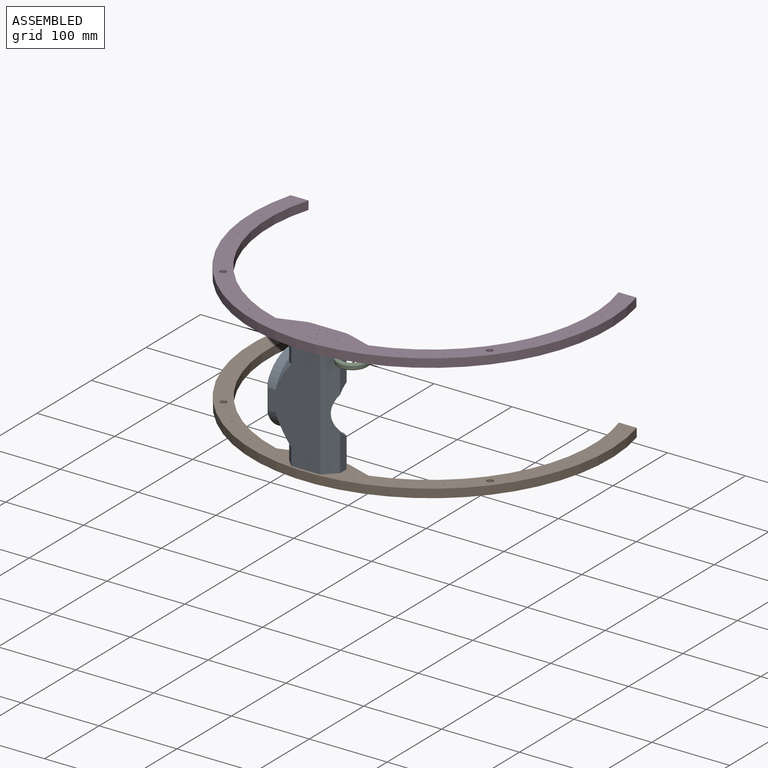
[diagram: assembled view]
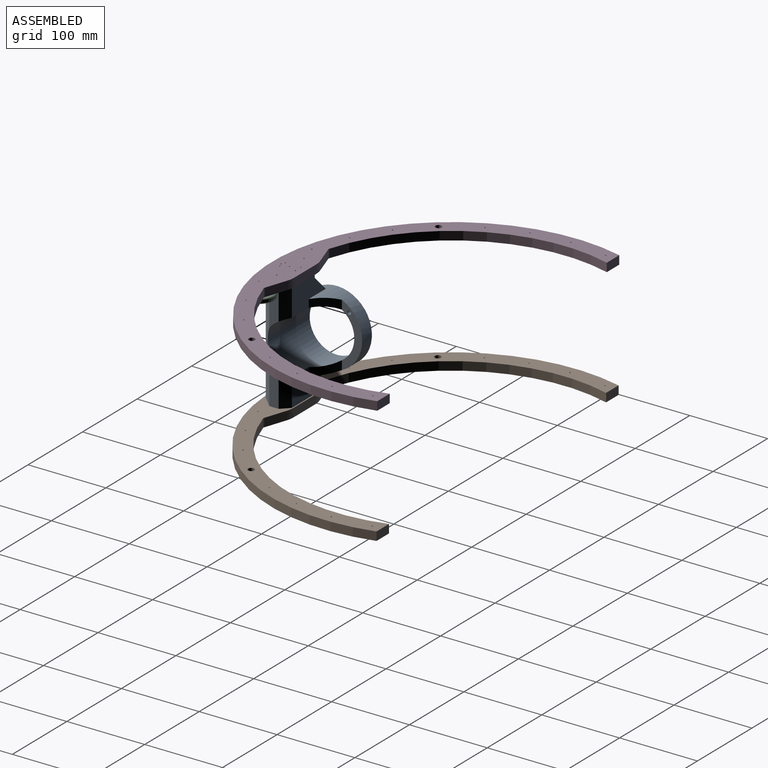
[diagram: assembled view, second angle]
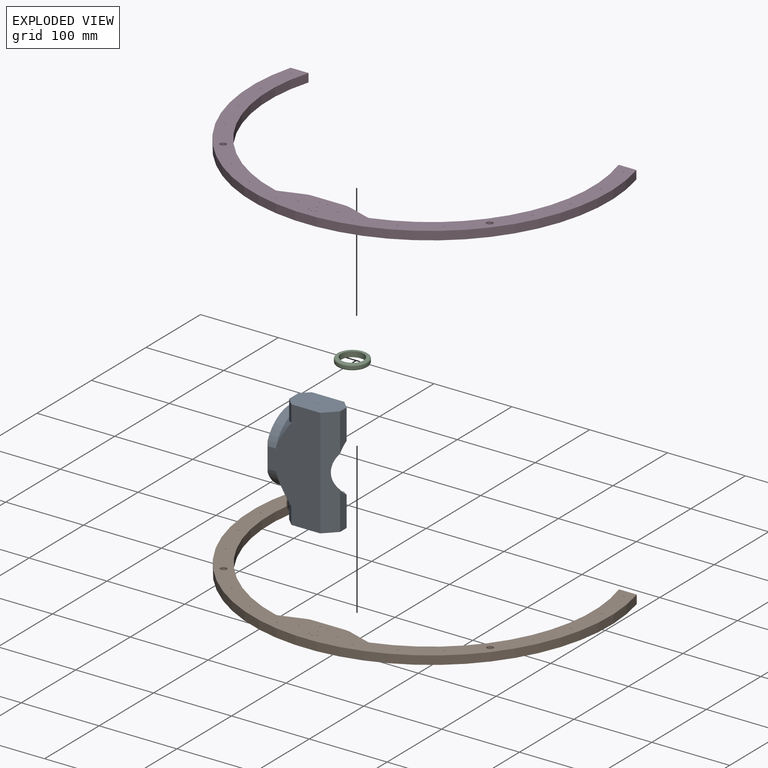
[diagram: exploded view]
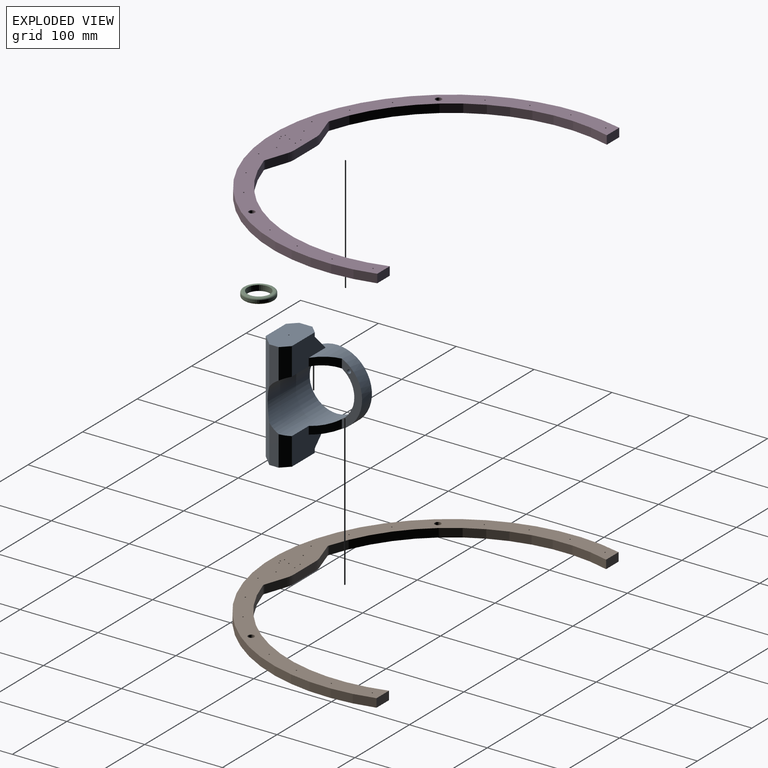
[diagram: exploded view, second angle]
ASSEMBLY  parts=4 mates=3
PART A: 32 faces, bbox 140x107.1x84 mm
  f0: cylinder r=45mm len=90mm, axis (0,0,-1), area 4609.8mm2, adj f1,f2,f4,f5,f6,f7,f8,f12
  f1: plane 140x67mm, normal (0,1,0), area 6779.9mm2, adj f0,f12,f13,f16,f21,f24,f25,f29
  f2: plane 90x86mm, normal (0,0,1), area 2374.2mm2, adj f0,f3,f9,f10,f12
  f3: cylinder r=35mm len=84mm, axis (0,0,-1), area 10742.9mm2, adj f2,f4,f5,f6,f7,f8,f19,f20
  f4: plane 81.58x26mm, normal (0,0,-1), area 840.7mm2, adj f0,f3,f7,f8,f9
  f5: plane 62x35.52mm, normal (0,-1,0), area 1581.9mm2, adj f0,f3,f8,f16,f24,f27,f31
  f6: plane 62x35.52mm, normal (0,-1,0), area 1581.9mm2, adj f0,f3,f7,f13,f25,f26,f28
  f7: plane 25x25mm, normal (0,-0.71,-0.71), area 365.4mm2, adj f0,f3,f4,f6
  f8: plane 25x25mm, normal (0,-0.71,-0.71), area 365.4mm2, adj f0,f3,f4,f5
  f9: cylinder r=2.5mm len=18mm, axis (0,0,1), area 282.7mm2, adj f2,f4
  f10: cylinder r=2.5mm len=18mm, axis (0,0,1), area 282.7mm2, adj f2,f11
  f11: plane 5x5mm, normal (0,0,1), area 19.6mm2, adj f10
  f12: plane 37.09x2mm, normal (0,0.71,0.71), area 90.9mm2, adj f0,f1,f2
  f13: plane 62x37mm, normal (-1,0,0), area 2029.7mm2, adj f1,f6,f15,f19,f21,f22,f26,f28
  f14: plane 1.5x1.5mm, normal (-1,0,0), area 1.8mm2, adj f15
  f15: cylinder r=0.75mm len=5mm, axis (-1,0,0), area 23.6mm2, adj f13,f14
  f16: plane 62x37mm, normal (1,0,0), area 2029.7mm2, adj f1,f5,f18,f20,f21,f23,f27,f30
  f17: plane 1.5x1.5mm, normal (1,0,0), area 1.8mm2, adj f18
  f18: cylinder r=0.75mm len=5mm, axis (1,0,0), area 23.6mm2, adj f16,f17
  f19: plane 49x12mm, normal (0,0,-1), area 517.9mm2, adj f3,f13,f21,f26
  f20: plane 49x12mm, normal (0,0,-1), area 517.9mm2, adj f3,f16,f21,f27
  f21: plane 140x15mm, normal (0,0.71,-0.71), area 2686.6mm2, adj f1,f3,f13,f16,f19,f20
  f22: plane 26x17mm, normal (0,0,1), area 358.1mm2, adj f13,f25,f28,f29
  f23: plane 26x17mm, normal (0,0,1), area 358.1mm2, adj f16,f24,f30,f31
  f24: cone r=45mm half-angle=45deg, axis (0,0,-1), area 822.1mm2, adj f0,f1,f5,f23,f30,f31
  f25: cone r=45mm half-angle=45deg, axis (0,0,-1), area 822.1mm2, adj f0,f1,f6,f22,f28,f29
  f26: plane 38.87x10mm, normal (0,-0.71,-0.71), area 522mm2, adj f3,f6,f13,f19
  f27: plane 38.87x10mm, normal (0,-0.71,-0.71), area 522mm2, adj f3,f5,f16,f20
  f28: plane 17.38x10mm, normal (0,-0.71,0.71), area 157.3mm2, adj f6,f13,f22,f25
  f29: plane 26x10mm, normal (0,0.71,0.71), area 333.6mm2, adj f1,f13,f22,f25
  f30: plane 26x10mm, normal (0,0.71,0.71), area 333.6mm2, adj f1,f16,f23,f24
  f31: plane 17.38x10mm, normal (0,-0.71,0.71), area 157.3mm2, adj f5,f16,f23,f24
PART B: 38 faces, bbox 460x290x11 mm
  f0: plane 460x290mm, normal (0,0,1), area 19309.1mm2, adj f2,f3,f4,f5,f6,f7,f8,f9
  f1: plane 460x290mm, normal (0,0,-1), area 19309.1mm2, adj f2,f3,f4,f5,f6,f7,f8,f9
  f2: plane 28.21x11mm, normal (0.32,0.95,0), area 327.2mm2, adj f0,f1,f10,f13
  f3: plane 40.71x11mm, normal (0,1,0), area 447.8mm2, adj f0,f1,f10,f11
  f4: plane 28.21x11mm, normal (-0.32,0.95,0), area 327.2mm2, adj f0,f1,f11,f12
  f5: cylinder r=208mm len=258.96mm, axis (0,0,-1), area 3586.4mm2, adj f0,f1,f6,f12
  f6: plane 22.88x11mm, normal (0,1,0), area 251.7mm2, adj f0,f1,f5,f7
  f7: cylinder r=230mm len=460mm, axis (0,0,-1), area 9283.7mm2, adj f0,f1,f6,f8
  f8: plane 22.88x11mm, normal (0,1,0), area 251.7mm2, adj f0,f1,f7,f9
  f9: cylinder r=208mm len=258.96mm, axis (0,0,-1), area 3586.4mm2, adj f0,f1,f8,f13
  f10: cylinder r=28.52mm len=11mm, axis (0,0,-1), area 101.4mm2, adj f0,f1,f2,f3
  f11: cylinder r=28.52mm len=11mm, axis (0,0,1), area 101.4mm2, adj f0,f1,f3,f4
  f12: cylinder r=5mm len=11mm, axis (0,0,-1), area 34mm2, adj f0,f1,f4,f5
  f13: cylinder r=5mm len=11mm, axis (0,0,-1), area 34mm2, adj f0,f1,f2,f9
  f14: cylinder r=0.75mm len=11mm, axis (0,0,1), area 51.8mm2, adj f0,f1
  f15: cylinder r=0.75mm len=11mm, axis (0,0,1), area 51.8mm2, adj f0,f1
  f16: cylinder r=0.75mm len=11mm, axis (0,0,1), area 51.8mm2, adj f0,f1
  f17: cylinder r=0.75mm len=11mm, axis (0,0,1), area 51.8mm2, adj f0,f1
  f18: cylinder r=0.75mm len=11mm, axis (0,0,1), area 51.8mm2, adj f0,f1
  f19: cylinder r=0.75mm len=11mm, axis (0,0,1), area 51.8mm2, adj f0,f1
  f20: cylinder r=0.75mm len=11mm, axis (0,0,1), area 51.8mm2, adj f0,f1
  f21: cylinder r=0.75mm len=11mm, axis (0,0,1), area 51.8mm2, adj f0,f1
  f22: cylinder r=0.75mm len=11mm, axis (0,0,1), area 51.8mm2, adj f0,f1
  f23: cylinder r=0.75mm len=11mm, axis (0,0,1), area 51.8mm2, adj f0,f1
  f24: cylinder r=0.75mm len=11mm, axis (0,0,1), area 51.8mm2, adj f0,f1
  f25: cylinder r=0.75mm len=11mm, axis (0,0,1), area 51.8mm2, adj f0,f1
  f26: cylinder r=0.75mm len=11mm, axis (0,0,1), area 51.8mm2, adj f0,f1
  f27: cylinder r=0.75mm len=11mm, axis (0,0,1), area 51.8mm2, adj f0,f1
  f28: cylinder r=0.75mm len=11mm, axis (0,0,1), area 51.8mm2, adj f0,f1
  f29: cylinder r=0.75mm len=11mm, axis (0,0,1), area 51.8mm2, adj f0,f1
  f30: cylinder r=0.75mm len=11mm, axis (0,0,1), area 51.8mm2, adj f0,f1
  f31: cylinder r=0.75mm len=11mm, axis (0,0,1), area 51.8mm2, adj f0,f1
  f32: cylinder r=0.75mm len=11mm, axis (0,0,1), area 51.8mm2, adj f0,f1
  f33: cylinder r=0.75mm len=11mm, axis (0,0,1), area 51.8mm2, adj f0,f1
  f34: cylinder r=0.75mm len=11mm, axis (0,0,1), area 51.8mm2, adj f0,f1
  f35: cylinder r=0.75mm len=11mm, axis (0,0,1), area 51.8mm2, adj f0,f1
  f36: cylinder r=4mm len=11mm, axis (0,0,1), area 276.5mm2, adj f0,f1
  f37: cylinder r=4mm len=11mm, axis (0,0,1), area 276.5mm2, adj f0,f1
PART C: 6 faces, bbox 42.2x42.2x7 mm
  f0: cylinder r=14.5mm len=29mm, axis (0,0,-1), area 637.7mm2, adj f2,f4
  f1: cylinder r=19.5mm len=39mm, axis (0,0,-1), area 367.6mm2, adj f3,f5
  f2: plane 35x35mm, normal (0,0,1), area 301.6mm2, adj f0,f3
  f3: torus R=17.5mm, axis (0,0,1), area 370.6mm2, adj f1,f2
  f4: plane 35x35mm, normal (0,0,-1), area 301.6mm2, adj f0,f5
  f5: torus R=17.5mm, axis (0,0,-1), area 370.6mm2, adj f1,f4
PART D: same geometry as B
PLACE A rot(axis=(0.71,0,-0.71),180deg) t=(-56.92,-185.6,63.85)mm
PLACE B rot(axis=(0.16,0.88,0.45),0deg) t=(-21.92,-2.1,-17.15)mm
PLACE C t=(26.05,-215.23,130.35)mm
PLACE D t=(-22.68,-1.72,133.85)mm
MATE revolute A.f13 <-> D.f32  axis (0,0,1) through (-22.68,-209.72,133.85)mm
MATE revolute C.f0 <-> D.f14  axis (0,0,1) through (26.05,-215.23,133.85)mm
MATE fastened B.f32 <-> A.f15  axis (0,0,1) through (-21.92,-210.1,-6.15)mm
